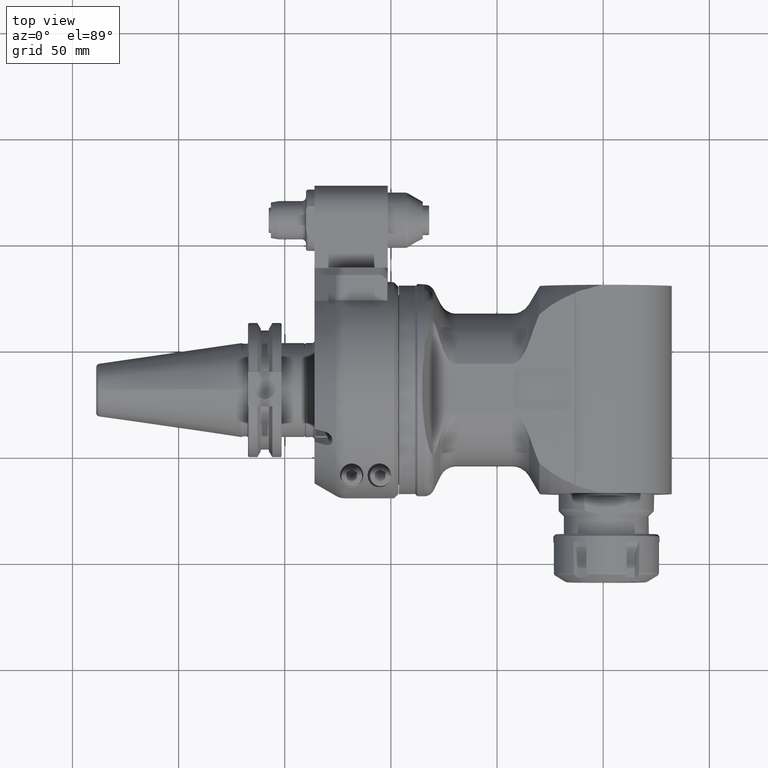
[diagram: clean part render]
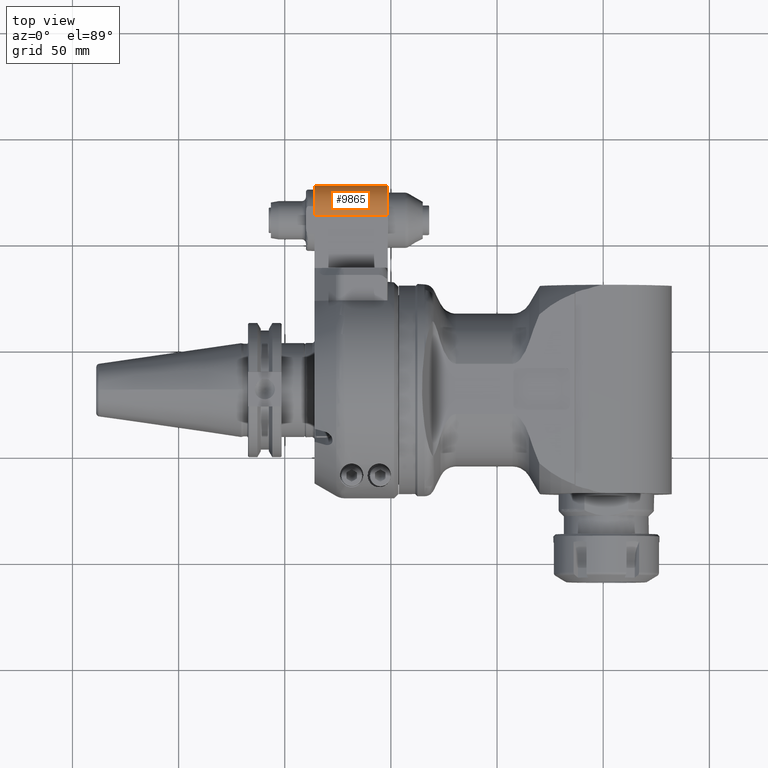
[diagram: same view with one face highlighted and labeled with its STEP entity id]
A machine part, top view. The second image highlights one B-rep face of the part: STEP entity #9865.
In plain terms, the highlighted cylindrical surface (edge-blend (fillet) strip) has radius 14 mm, axis along (-1, 0, 0).
Its self-contained STEP definition (entity closure, byte-faithful):
#1177=LINE('',#20916,#1913);
#1178=LINE('',#20918,#1914);
#1913=VECTOR('',#12633,34.5);
#1914=VECTOR('',#12636,34.5);
#2193=CYLINDRICAL_SURFACE('',#10671,14.);
#2550=FACE_OUTER_BOUND('',#3123,.T.);
#3123=EDGE_LOOP('',(#8291,#8292,#8293,#8294));
#3578=CIRCLE('',#10639,14.);
#3587=CIRCLE('',#10657,14.);
#4475=VERTEX_POINT('',#20796);
#4476=VERTEX_POINT('',#20798);
#4501=VERTEX_POINT('',#20876);
#4502=VERTEX_POINT('',#20878);
#5774=EDGE_CURVE('',#4475,#4476,#3578,.T.);
#5811=EDGE_CURVE('',#4501,#4502,#3587,.T.);
#5831=EDGE_CURVE('',#4501,#4476,#1177,.T.);
#5832=EDGE_CURVE('',#4475,#4502,#1178,.T.);
#8291=ORIENTED_EDGE('',*,*,#5832,.T.);
#8292=ORIENTED_EDGE('',*,*,#5811,.F.);
#8293=ORIENTED_EDGE('',*,*,#5831,.T.);
#8294=ORIENTED_EDGE('',*,*,#5774,.F.);
#9865=ADVANCED_FACE('',(#2550),#2193,.T.);
#10639=AXIS2_PLACEMENT_3D('',#20799,#12534,#12535);
#10657=AXIS2_PLACEMENT_3D('',#20879,#12594,#12595);
#10671=AXIS2_PLACEMENT_3D('',#20917,#12634,#12635);
#12534=DIRECTION('center_axis',(1.,0.,0.));
#12535=DIRECTION('ref_axis',(0.,1.,0.));
#12594=DIRECTION('center_axis',(-1.,0.,0.));
#12595=DIRECTION('ref_axis',(0.,0.,1.));
#12633=DIRECTION('',(1.,0.,0.));
#12634=DIRECTION('center_axis',(-1.,0.,0.));
#12635=DIRECTION('ref_axis',(0.,-1.,0.));
#12636=DIRECTION('',(-1.,0.,0.));
#20796=CARTESIAN_POINT('',(-17.,96.25,1.));
#20798=CARTESIAN_POINT('',(-17.,82.25,15.));
#20799=CARTESIAN_POINT('Origin',(-17.,82.25,1.));
#20876=CARTESIAN_POINT('',(-51.5,82.25,15.));
#20878=CARTESIAN_POINT('',(-51.5,96.25,1.));
#20879=CARTESIAN_POINT('Origin',(-51.5,82.25,1.));
#20916=CARTESIAN_POINT('',(-51.5,82.25,15.));
#20917=CARTESIAN_POINT('Origin',(-43.,82.25,1.));
#20918=CARTESIAN_POINT('',(-17.,96.25,1.));